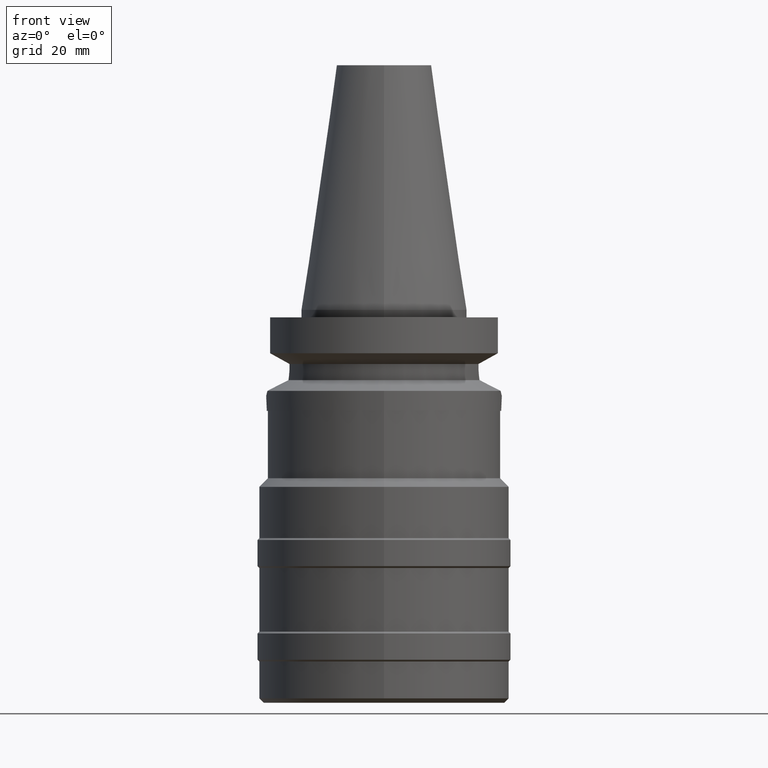
[diagram: clean part render]
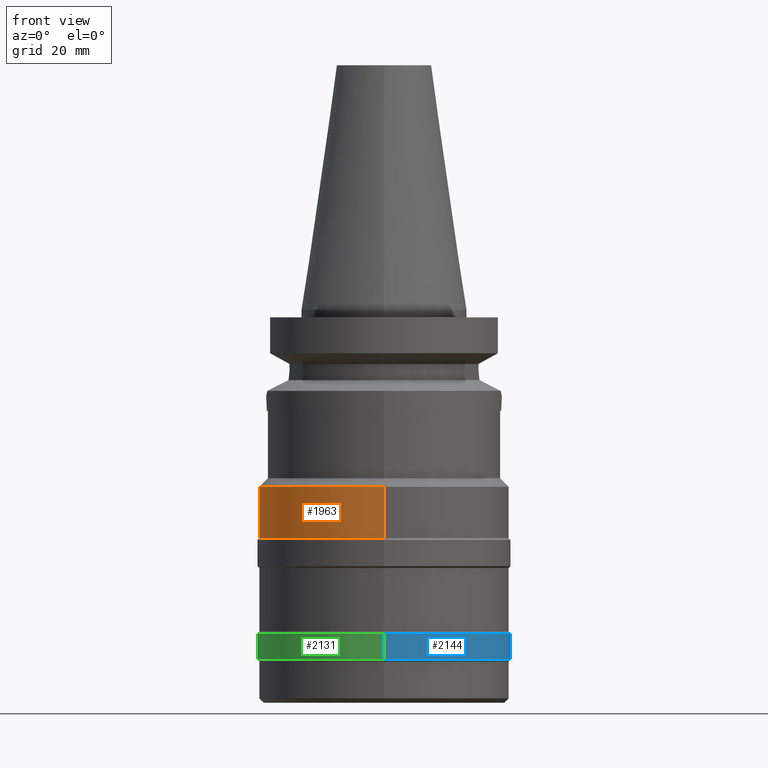
[diagram: same view with three faces highlighted in distinct colors, each labeled with its STEP entity id]
A machine part, front view with three faces highlighted in distinct colors.
Their STEP definitions:

[orange] entity #1963 — the highlighted cylindrical surface (partial cylindrical patch) has radius 33.5 mm, axis along (0, 0, -1).
#713=CARTESIAN_POINT('',(0.E0,0.E0,-4.73E1));
#714=DIRECTION('',(0.E0,0.E0,-1.E0));
#715=DIRECTION('',(0.E0,-1.E0,0.E0));
#716=AXIS2_PLACEMENT_3D('',#713,#714,#715);
#721=DIRECTION('',(0.E0,0.E0,-1.E0));
#722=VECTOR('',#721,1.37E1);
#723=CARTESIAN_POINT('',(0.E0,-3.35E1,-4.73E1));
#724=LINE('',#723,#722);
#728=DIRECTION('',(0.E0,0.E0,-1.E0));
#729=VECTOR('',#728,1.37E1);
#730=CARTESIAN_POINT('',(0.E0,3.35E1,-4.73E1));
#731=LINE('',#730,#729);
#758=CARTESIAN_POINT('',(0.E0,0.E0,-6.1E1));
#759=DIRECTION('',(0.E0,0.E0,1.E0));
#760=DIRECTION('',(0.E0,1.E0,0.E0));
#761=AXIS2_PLACEMENT_3D('',#758,#759,#760);
#1349=CARTESIAN_POINT('',(0.E0,3.35E1,-6.1E1));
#1350=VERTEX_POINT('',#1349);
#1351=CARTESIAN_POINT('',(0.E0,-3.35E1,-6.1E1));
#1352=VERTEX_POINT('',#1351);
#1353=CARTESIAN_POINT('',(0.E0,3.35E1,-4.73E1));
#1354=VERTEX_POINT('',#1353);
#1355=CARTESIAN_POINT('',(0.E0,-3.35E1,-4.73E1));
#1356=VERTEX_POINT('',#1355);
#1949=CARTESIAN_POINT('',(0.E0,2.129905713077E-14,7.392E1));
#1950=DIRECTION('',(0.E0,0.E0,-1.E0));
#1951=DIRECTION('',(0.E0,-1.E0,0.E0));
#1952=AXIS2_PLACEMENT_3D('',#1949,#1950,#1951);
#1953=CYLINDRICAL_SURFACE('',#1952,3.35E1);
#1955=ORIENTED_EDGE('',*,*,#1954,.F.);
#1956=ORIENTED_EDGE('',*,*,#1944,.F.);
#1958=ORIENTED_EDGE('',*,*,#1957,.T.);
#1960=ORIENTED_EDGE('',*,*,#1959,.F.);
#1961=EDGE_LOOP('',(#1955,#1956,#1958,#1960));
#1962=FACE_OUTER_BOUND('',#1961,.F.);
#717=CIRCLE('',#716,3.35E1);
#762=CIRCLE('',#761,3.35E1);
#1944=EDGE_CURVE('',#1356,#1354,#717,.T.);
#1954=EDGE_CURVE('',#1354,#1350,#731,.T.);
#1957=EDGE_CURVE('',#1356,#1352,#724,.T.);
#1959=EDGE_CURVE('',#1350,#1352,#762,.T.);
#1963=ADVANCED_FACE('',(#1962),#1953,.T.);

[blue] entity #2144 — the highlighted cylindrical surface (partial cylindrical patch) has radius 34 mm, axis along (0, 0, -1).
#862=CARTESIAN_POINT('',(0.E0,0.E0,-8.65E1));
#863=DIRECTION('',(0.E0,0.E0,-1.E0));
#864=DIRECTION('',(0.E0,1.E0,0.E0));
#865=AXIS2_PLACEMENT_3D('',#862,#863,#864);
#901=DIRECTION('',(0.E0,0.E0,-1.E0));
#902=VECTOR('',#901,7.E0);
#903=CARTESIAN_POINT('',(0.E0,-3.4E1,-8.65E1));
#904=LINE('',#903,#902);
#908=DIRECTION('',(0.E0,0.E0,-1.E0));
#909=VECTOR('',#908,7.E0);
#910=CARTESIAN_POINT('',(0.E0,3.4E1,-8.65E1));
#911=LINE('',#910,#909);
#930=CARTESIAN_POINT('',(0.E0,0.E0,-9.35E1));
#931=DIRECTION('',(0.E0,0.E0,1.E0));
#932=DIRECTION('',(0.E0,-1.E0,0.E0));
#933=AXIS2_PLACEMENT_3D('',#930,#931,#932);
#1325=CARTESIAN_POINT('',(0.E0,3.4E1,-9.35E1));
#1326=VERTEX_POINT('',#1325);
#1327=CARTESIAN_POINT('',(0.E0,-3.4E1,-9.35E1));
#1328=VERTEX_POINT('',#1327);
#1329=CARTESIAN_POINT('',(0.E0,3.4E1,-8.65E1));
#1330=VERTEX_POINT('',#1329);
#1331=CARTESIAN_POINT('',(0.E0,-3.4E1,-8.65E1));
#1332=VERTEX_POINT('',#1331);
#2132=CARTESIAN_POINT('',(0.E0,2.129905713077E-14,7.392E1));
#2133=DIRECTION('',(0.E0,0.E0,-1.E0));
#2134=DIRECTION('',(0.E0,-1.E0,0.E0));
#2135=AXIS2_PLACEMENT_3D('',#2132,#2133,#2134);
#2136=CYLINDRICAL_SURFACE('',#2135,3.4E1);
#2137=ORIENTED_EDGE('',*,*,#2122,.T.);
#2139=ORIENTED_EDGE('',*,*,#2138,.F.);
#2140=ORIENTED_EDGE('',*,*,#2125,.F.);
#2141=ORIENTED_EDGE('',*,*,#2096,.F.);
#2142=EDGE_LOOP('',(#2137,#2139,#2140,#2141));
#2143=FACE_OUTER_BOUND('',#2142,.F.);
#866=CIRCLE('',#865,3.4E1);
#934=CIRCLE('',#933,3.4E1);
#2096=EDGE_CURVE('',#1330,#1332,#866,.T.);
#2122=EDGE_CURVE('',#1330,#1326,#911,.T.);
#2125=EDGE_CURVE('',#1332,#1328,#904,.T.);
#2138=EDGE_CURVE('',#1328,#1326,#934,.T.);
#2144=ADVANCED_FACE('',(#2143),#2136,.T.);

[green] entity #2131 — the highlighted cylindrical surface (partial cylindrical patch) has radius 34 mm, axis along (0, 0, -1).
#893=CARTESIAN_POINT('',(0.E0,0.E0,-8.65E1));
#894=DIRECTION('',(0.E0,0.E0,-1.E0));
#895=DIRECTION('',(0.E0,-1.E0,0.E0));
#896=AXIS2_PLACEMENT_3D('',#893,#894,#895);
#901=DIRECTION('',(0.E0,0.E0,-1.E0));
#902=VECTOR('',#901,7.E0);
#903=CARTESIAN_POINT('',(0.E0,-3.4E1,-8.65E1));
#904=LINE('',#903,#902);
#908=DIRECTION('',(0.E0,0.E0,-1.E0));
#909=VECTOR('',#908,7.E0);
#910=CARTESIAN_POINT('',(0.E0,3.4E1,-8.65E1));
#911=LINE('',#910,#909);
#938=CARTESIAN_POINT('',(0.E0,0.E0,-9.35E1));
#939=DIRECTION('',(0.E0,0.E0,1.E0));
#940=DIRECTION('',(0.E0,1.E0,0.E0));
#941=AXIS2_PLACEMENT_3D('',#938,#939,#940);
#1325=CARTESIAN_POINT('',(0.E0,3.4E1,-9.35E1));
#1326=VERTEX_POINT('',#1325);
#1327=CARTESIAN_POINT('',(0.E0,-3.4E1,-9.35E1));
#1328=VERTEX_POINT('',#1327);
#1329=CARTESIAN_POINT('',(0.E0,3.4E1,-8.65E1));
#1330=VERTEX_POINT('',#1329);
#1331=CARTESIAN_POINT('',(0.E0,-3.4E1,-8.65E1));
#1332=VERTEX_POINT('',#1331);
#2117=CARTESIAN_POINT('',(0.E0,2.129905713077E-14,7.392E1));
#2118=DIRECTION('',(0.E0,0.E0,-1.E0));
#2119=DIRECTION('',(0.E0,-1.E0,0.E0));
#2120=AXIS2_PLACEMENT_3D('',#2117,#2118,#2119);
#2121=CYLINDRICAL_SURFACE('',#2120,3.4E1);
#2123=ORIENTED_EDGE('',*,*,#2122,.F.);
#2124=ORIENTED_EDGE('',*,*,#2112,.F.);
#2126=ORIENTED_EDGE('',*,*,#2125,.T.);
#2128=ORIENTED_EDGE('',*,*,#2127,.F.);
#2129=EDGE_LOOP('',(#2123,#2124,#2126,#2128));
#2130=FACE_OUTER_BOUND('',#2129,.F.);
#897=CIRCLE('',#896,3.4E1);
#942=CIRCLE('',#941,3.4E1);
#2112=EDGE_CURVE('',#1332,#1330,#897,.T.);
#2122=EDGE_CURVE('',#1330,#1326,#911,.T.);
#2125=EDGE_CURVE('',#1332,#1328,#904,.T.);
#2127=EDGE_CURVE('',#1326,#1328,#942,.T.);
#2131=ADVANCED_FACE('',(#2130),#2121,.T.);